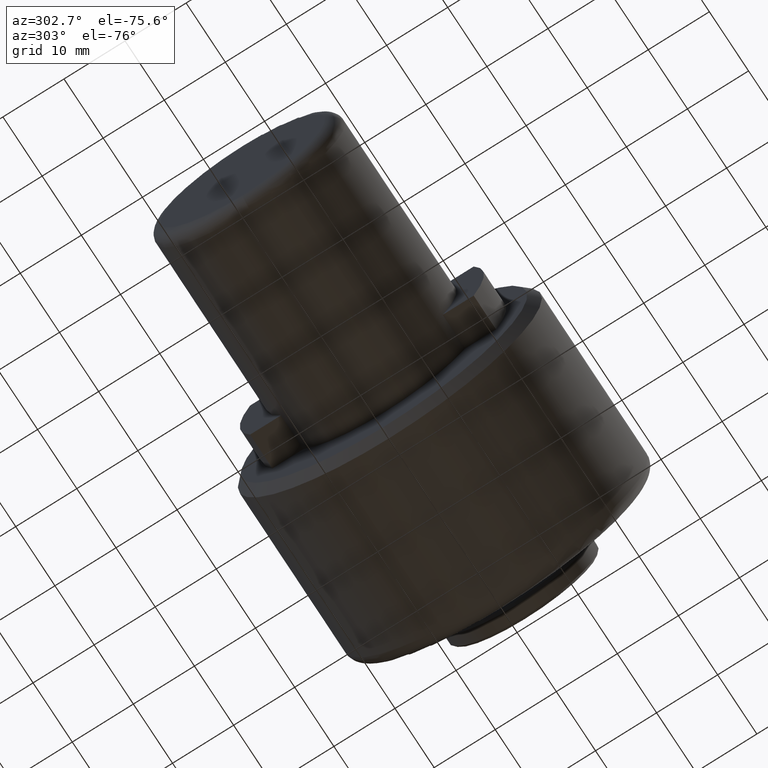
[diagram: clean part render]
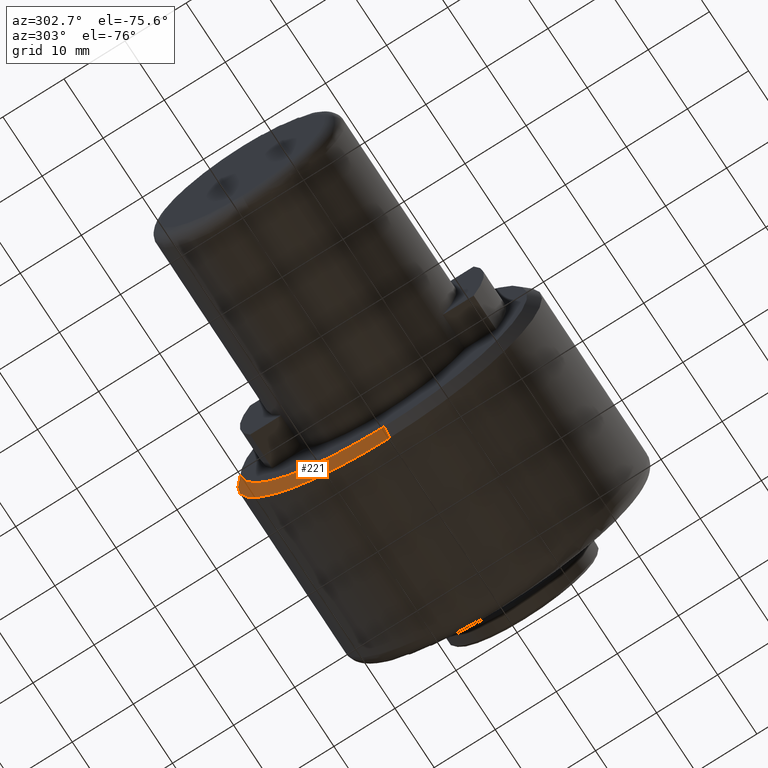
[diagram: same view with one face highlighted and labeled with its STEP entity id]
A machine part, auxiliary view. The second image highlights one B-rep face of the part: STEP entity #221.
In plain terms, the highlighted conical surface has half-angle 45 deg.
Its self-contained STEP definition (entity closure, byte-faithful):
#42 = VERTEX_POINT ( 'NONE', #393 ) ;
#66 = AXIS2_PLACEMENT_3D ( 'NONE', #975, #1101, #748 ) ;
#104 = ORIENTED_EDGE ( 'NONE', *, *, #927, .F. ) ;
#142 = EDGE_CURVE ( 'NONE', #1404, #42, #670, .T. ) ;
#158 = DIRECTION ( 'NONE',  ( -1.000000000000000000, -0.0000000000000000000, -0.0000000000000000000 ) ) ;
#188 = AXIS2_PLACEMENT_3D ( 'NONE', #1280, #158, #834 ) ;
#210 = CARTESIAN_POINT ( 'NONE',  ( 36.10000000000000100, 0.0000000000000000000, 0.0000000000000000000 ) ) ;
#221 = ADVANCED_FACE ( 'NONE', ( #632 ), #1163, .T. ) ;
#243 = CARTESIAN_POINT ( 'NONE',  ( 36.10000000000002300, 0.0000000000000000000, -23.45000000000002100 ) ) ;
#265 = EDGE_CURVE ( 'NONE', #856, #1417, #1426, .T. ) ;
#366 = LINE ( 'NONE', #1097, #936 ) ;
#393 = CARTESIAN_POINT ( 'NONE',  ( 37.54999999999996900, 3.049370529876905700E-015, 24.89999999999997000 ) ) ;
#420 = DIRECTION ( 'NONE',  ( 0.0000000000000000000, 0.0000000000000000000, -1.000000000000000000 ) ) ;
#476 = LINE ( 'NONE', #1129, #1045 ) ;
#523 = AXIS2_PLACEMENT_3D ( 'NONE', #210, #1006, #420 ) ;
#618 = ORIENTED_EDGE ( 'NONE', *, *, #265, .F. ) ;
#621 = CARTESIAN_POINT ( 'NONE',  ( 36.10000000000002300, 2.960583636938727300E-015, 23.45000000000002100 ) ) ;
#632 = FACE_OUTER_BOUND ( 'NONE', #1119, .T. ) ;
#670 = CIRCLE ( 'NONE', #66, 24.89999999999999900 ) ;
#748 = DIRECTION ( 'NONE',  ( 1.114681751631683300E-015, 0.0000000000000000000, -1.000000000000000000 ) ) ;
#757 = DIRECTION ( 'NONE',  ( 0.7071067811865475700, 8.659560562354931600E-017, 0.7071067811865474600 ) ) ;
#834 = DIRECTION ( 'NONE',  ( 0.0000000000000000000, 0.0000000000000000000, -1.000000000000000000 ) ) ;
#856 = VERTEX_POINT ( 'NONE', #621 ) ;
#927 = EDGE_CURVE ( 'NONE', #1417, #1404, #476, .T. ) ;
#936 = VECTOR ( 'NONE', #757, 1000.000000000000000 ) ;
#975 = CARTESIAN_POINT ( 'NONE',  ( 37.54999999999996900, 0.0000000000000000000, 0.0000000000000000000 ) ) ;
#1006 = DIRECTION ( 'NONE',  ( 1.000000000000000000, 0.0000000000000000000, 0.0000000000000000000 ) ) ;
#1024 = DIRECTION ( 'NONE',  ( 0.7071067811865475700, 0.0000000000000000000, -0.7071067811865474600 ) ) ;
#1036 = EDGE_CURVE ( 'NONE', #856, #42, #366, .T. ) ;
#1045 = VECTOR ( 'NONE', #1024, 1000.000000000000000 ) ;
#1097 = CARTESIAN_POINT ( 'NONE',  ( 36.10000000000000100, 2.871796744000542900E-015, 23.44999999999999900 ) ) ;
#1101 = DIRECTION ( 'NONE',  ( 1.000000000000000000, 0.0000000000000000000, 0.0000000000000000000 ) ) ;
#1119 = EDGE_LOOP ( 'NONE', ( #618, #1315, #1201, #104 ) ) ;
#1129 = CARTESIAN_POINT ( 'NONE',  ( 36.10000000000000100, 0.0000000000000000000, -23.44999999999999900 ) ) ;
#1163 = CONICAL_SURFACE ( 'NONE', #523, 23.44999999999999900, 0.7853981633974482800 ) ;
#1201 = ORIENTED_EDGE ( 'NONE', *, *, #142, .F. ) ;
#1280 = CARTESIAN_POINT ( 'NONE',  ( 36.10000000000002300, 0.0000000000000000000, 0.0000000000000000000 ) ) ;
#1315 = ORIENTED_EDGE ( 'NONE', *, *, #1036, .T. ) ;
#1374 = CARTESIAN_POINT ( 'NONE',  ( 37.54999999999996900, 0.0000000000000000000, -24.89999999999997000 ) ) ;
#1404 = VERTEX_POINT ( 'NONE', #1374 ) ;
#1417 = VERTEX_POINT ( 'NONE', #243 ) ;
#1426 = CIRCLE ( 'NONE', #188, 23.45000000000002100 ) ;